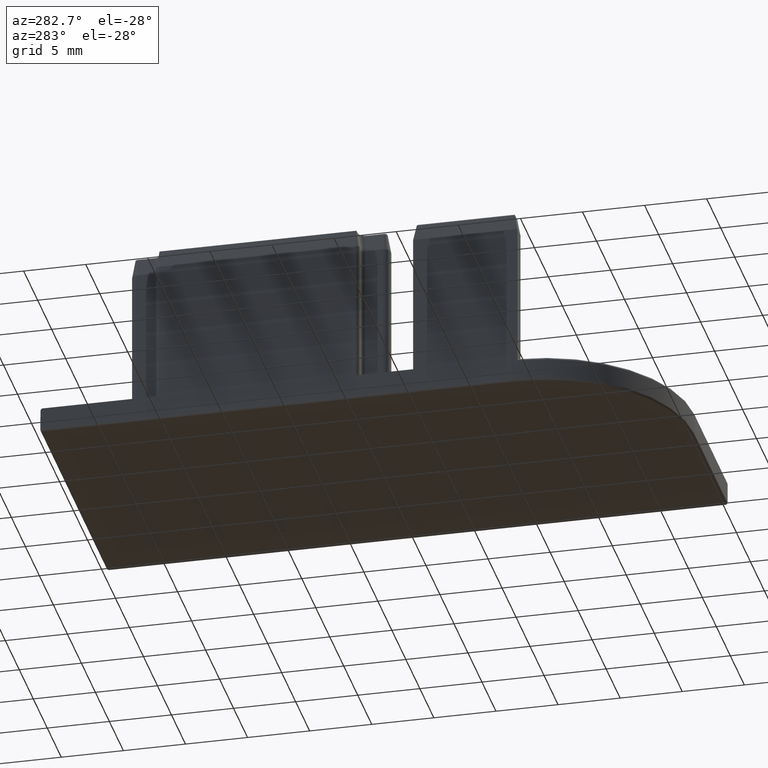
[diagram: clean part render]
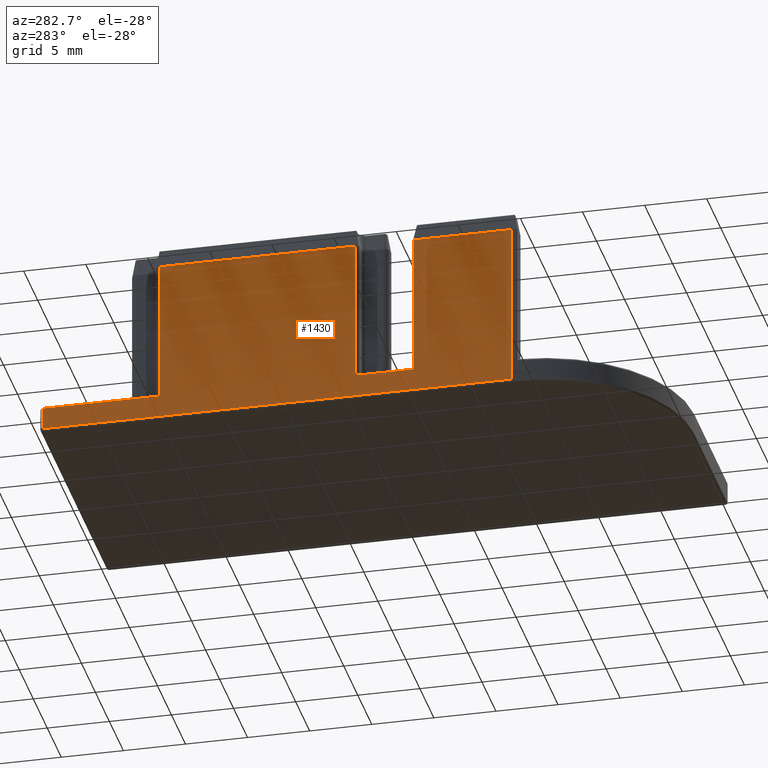
[diagram: same view with one face highlighted and labeled with its STEP entity id]
A machine part, auxiliary view. The second image highlights one B-rep face of the part: STEP entity #1430.
In plain terms, the highlighted planar face has unit normal (-1, 0, 0).
Its self-contained STEP definition (entity closure, byte-faithful):
#65=PLANE('',#1622);
#165=FACE_OUTER_BOUND('',#254,.T.);
#254=EDGE_LOOP('',(#1300,#1301,#1302,#1303,#1304,#1305,#1306,#1307,#1308,
#1309));
#269=LINE('',#2154,#391);
#296=LINE('',#2286,#418);
#299=LINE('',#2292,#421);
#308=LINE('',#2321,#430);
#316=LINE('',#2353,#438);
#350=LINE('',#2460,#472);
#353=LINE('',#2464,#475);
#367=LINE('',#2496,#489);
#370=LINE('',#2500,#492);
#378=LINE('',#2517,#500);
#391=VECTOR('',#1683,10.);
#418=VECTOR('',#1824,10.);
#421=VECTOR('',#1829,10.);
#430=VECTOR('',#1866,10.);
#438=VECTOR('',#1890,10.);
#472=VECTOR('',#1998,10.);
#475=VECTOR('',#2003,10.);
#489=VECTOR('',#2049,10.);
#492=VECTOR('',#2054,10.);
#500=VECTOR('',#2080,10.);
#593=VERTEX_POINT('',#2148);
#594=VERTEX_POINT('',#2152);
#596=VERTEX_POINT('',#2161);
#632=VERTEX_POINT('',#2284);
#634=VERTEX_POINT('',#2291);
#640=VERTEX_POINT('',#2320);
#655=VERTEX_POINT('',#2350);
#656=VERTEX_POINT('',#2352);
#689=VERTEX_POINT('',#2448);
#692=VERTEX_POINT('',#2455);
#722=EDGE_CURVE('',#594,#593,#269,.T.);
#783=EDGE_CURVE('',#632,#596,#296,.T.);
#786=EDGE_CURVE('',#596,#634,#299,.T.);
#801=EDGE_CURVE('',#640,#634,#308,.T.);
#817=EDGE_CURVE('',#656,#655,#316,.T.);
#869=EDGE_CURVE('',#689,#692,#350,.T.);
#872=EDGE_CURVE('',#640,#689,#353,.T.);
#888=EDGE_CURVE('',#632,#593,#367,.T.);
#891=EDGE_CURVE('',#656,#594,#370,.T.);
#899=EDGE_CURVE('',#655,#692,#378,.T.);
#1300=ORIENTED_EDGE('',*,*,#783,.F.);
#1301=ORIENTED_EDGE('',*,*,#888,.T.);
#1302=ORIENTED_EDGE('',*,*,#722,.F.);
#1303=ORIENTED_EDGE('',*,*,#891,.F.);
#1304=ORIENTED_EDGE('',*,*,#817,.T.);
#1305=ORIENTED_EDGE('',*,*,#899,.T.);
#1306=ORIENTED_EDGE('',*,*,#869,.F.);
#1307=ORIENTED_EDGE('',*,*,#872,.F.);
#1308=ORIENTED_EDGE('',*,*,#801,.T.);
#1309=ORIENTED_EDGE('',*,*,#786,.F.);
#1430=ADVANCED_FACE('',(#165),#65,.T.);
#1622=AXIS2_PLACEMENT_3D('',#2519,#2083,#2084);
#1683=DIRECTION('',(0.,-1.,1.42289179918378E-30));
#1824=DIRECTION('',(0.,1.,0.));
#1829=DIRECTION('',(0.,0.,1.));
#1866=DIRECTION('',(0.,1.,0.));
#1890=DIRECTION('',(0.,1.,0.));
#1998=DIRECTION('',(0.,-1.,-3.02068140384044E-31));
#2003=DIRECTION('',(0.,0.,1.));
#2049=DIRECTION('',(0.,0.,1.));
#2054=DIRECTION('',(0.,0.,1.));
#2080=DIRECTION('',(0.,0.,1.));
#2083=DIRECTION('center_axis',(-1.,0.,0.));
#2084=DIRECTION('ref_axis',(0.,0.,1.));
#2148=CARTESIAN_POINT('',(-12.,-13.,13.5));
#2152=CARTESIAN_POINT('',(-12.,-5.05,13.5));
#2154=CARTESIAN_POINT('',(-12.,-11.1241190515708,13.5));
#2161=CARTESIAN_POINT('',(-12.,24.8,0.2));
#2284=CARTESIAN_POINT('',(-12.,-13.,0.2));
#2286=CARTESIAN_POINT('',(-12.,-6.00285323946665,0.2));
#2291=CARTESIAN_POINT('',(-12.,24.8,2.));
#2292=CARTESIAN_POINT('',(-12.,24.8,0.));
#2320=CARTESIAN_POINT('',(-12.,15.4,2.));
#2321=CARTESIAN_POINT('',(-12.,25.,2.));
#2350=CARTESIAN_POINT('',(-12.,-0.400000000000004,2.));
#2352=CARTESIAN_POINT('',(-12.,-5.05,2.));
#2353=CARTESIAN_POINT('',(-12.,25.,2.));
#2448=CARTESIAN_POINT('',(-12.,15.4,13.5));
#2455=CARTESIAN_POINT('',(-12.,-0.400000000000004,13.5));
#2460=CARTESIAN_POINT('',(-12.,-2.75,13.5));
#2464=CARTESIAN_POINT('',(-12.,15.4,2.));
#2496=CARTESIAN_POINT('',(-12.,-13.,0.));
#2500=CARTESIAN_POINT('',(-12.,-5.05,2.));
#2517=CARTESIAN_POINT('',(-12.,-0.400000000000004,2.));
#2519=CARTESIAN_POINT('Origin',(-12.,-13.,0.));